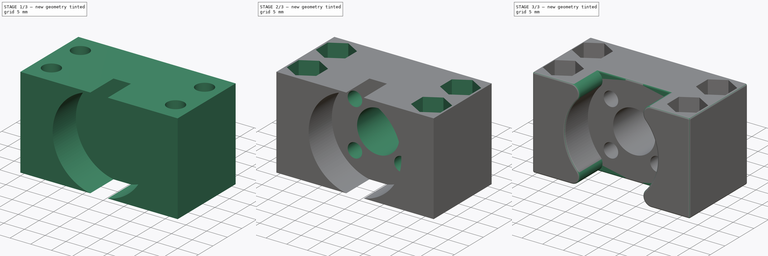
[diagram: build sequence overview — one tinted view per stage of 3, left to right]
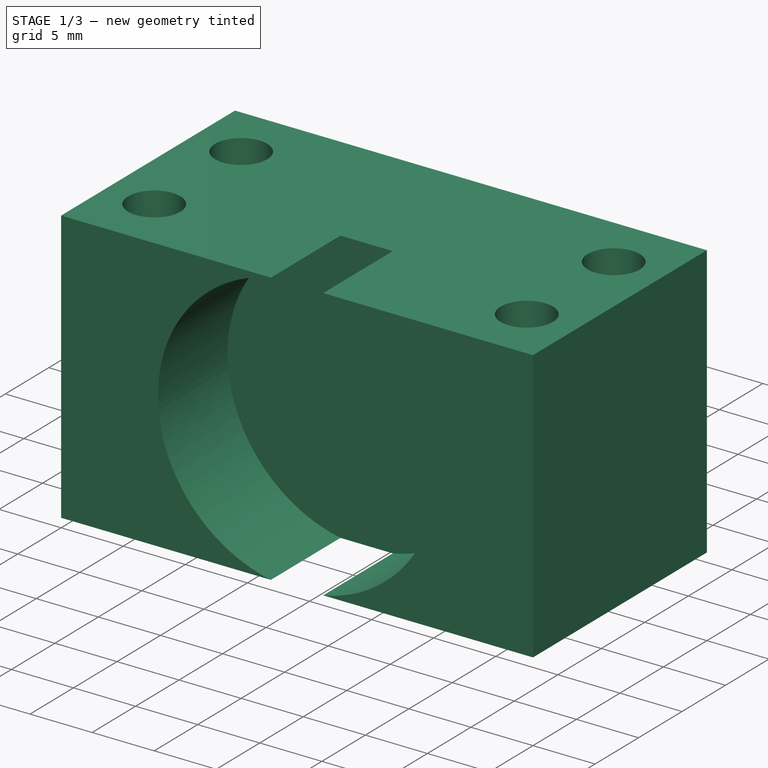
[diagram: stage 1 of 3 — iso view after this stage's code; geometry added in this stage tinted green]
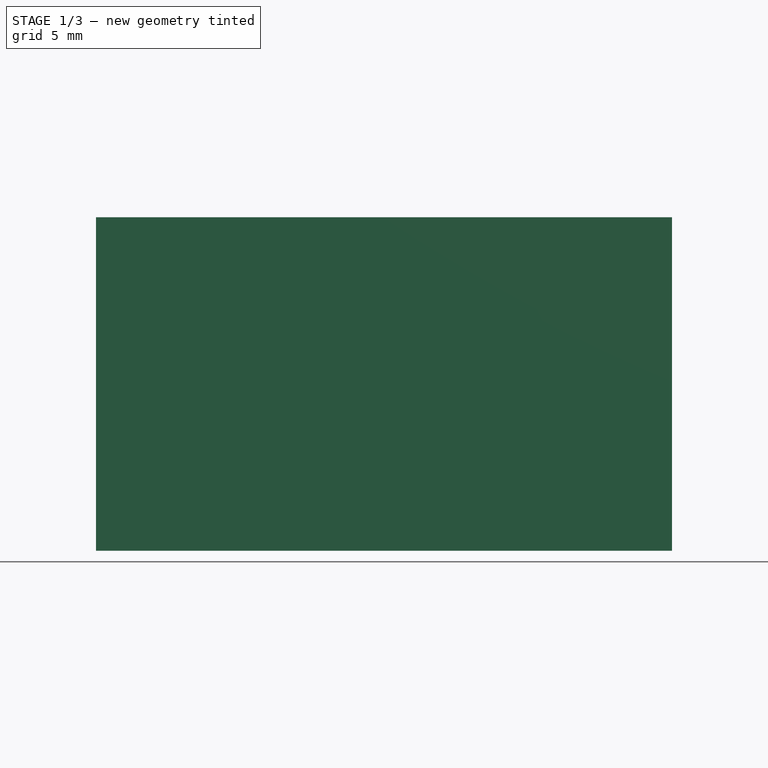
[diagram: stage 1 of 3 — front view after this stage's code; geometry added in this stage tinted green]
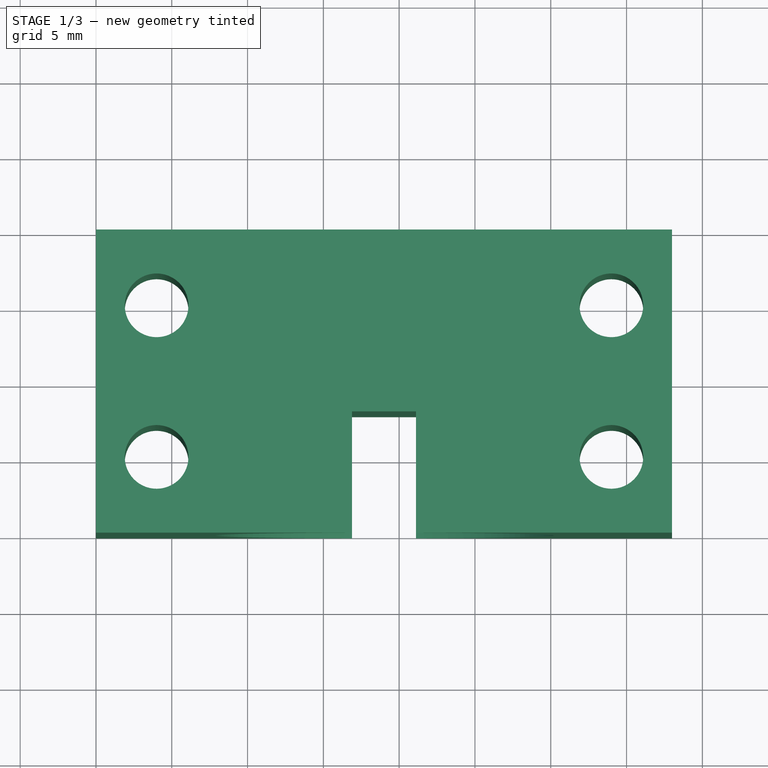
[diagram: stage 1 of 3 — top view after this stage's code; geometry added in this stage tinted green]
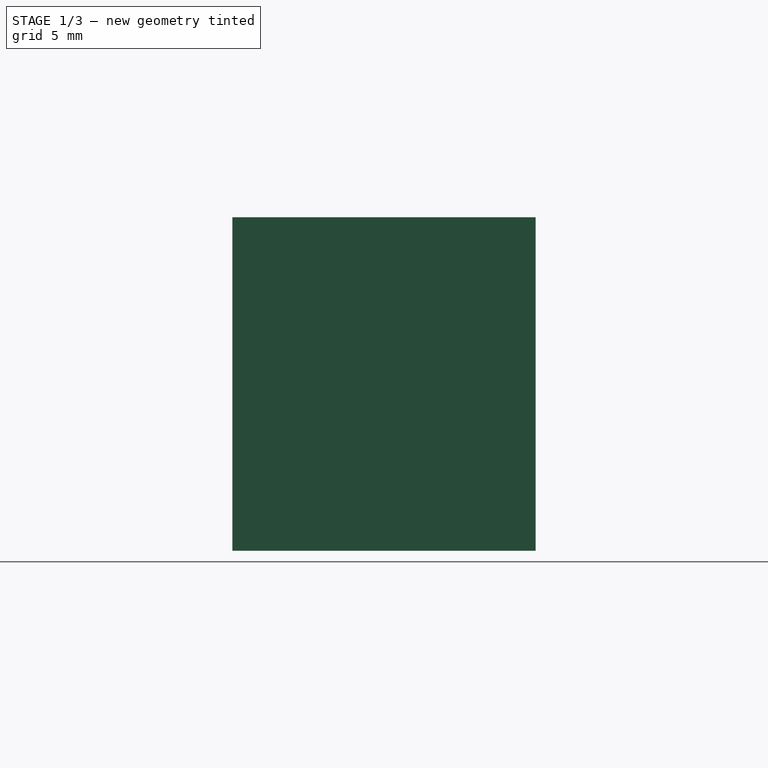
[diagram: stage 1 of 3 — right view after this stage's code; geometry added in this stage tinted green]
FCSTD DOCUMENT  (FreeCAD 0.19R24267 (Git))
Label: nutblock1b_cham
License: All rights reserved
LicenseURL: http://en.wikipedia.org/wiki/All_rights_reserved
objects: Sketcher::SketchObject×4, PartDesign::Pocket×3, PartDesign::Fillet×2, PartDesign::Pad×1, PartDesign::Body×1
note: 17 computed .brp shape members not serialized (recipe doc carries the construction recipe); baked Part::Feature solids carry a one-line shape summary decoded from their .brp

FEATURE [Sketcher::SketchObject] Sketch  label="Grundskizze"
  FullyConstrained = true
  MapMode = 5
  Support = -> [XY_Plane]
  sketch-geometry (12):
    g0: LineSegment StartX=0 StartY=20 StartZ=0 EndX=38 EndY=20 EndZ=0
    g1: LineSegment StartX=38 StartY=20 StartZ=0 EndX=38 EndY=0 EndZ=0
    g2: LineSegment StartX=38 StartY=0 StartZ=0 EndX=0 EndY=0 EndZ=0
    g3: LineSegment StartX=0 StartY=0 StartZ=0 EndX=0 EndY=20 EndZ=0
    g4: Circle CenterX=4 CenterY=15 CenterZ=0 NormalX=0 NormalY=0 NormalZ=1 AngleXU=0 Radius=2.1
    g5: Circle CenterX=4 CenterY=5 CenterZ=0 NormalX=0 NormalY=0 NormalZ=1 AngleXU=0 Radius=2.1
    g6: Circle CenterX=34 CenterY=15 CenterZ=0 NormalX=0 NormalY=0 NormalZ=1 AngleXU=0 Radius=2.1
    g7: Circle CenterX=34 CenterY=5 CenterZ=0 NormalX=0 NormalY=0 NormalZ=1 AngleXU=0 Radius=2.1
    g8: LineSegment StartX=4 StartY=15 StartZ=0 EndX=34 EndY=15 EndZ=0
    g9: LineSegment StartX=34 StartY=15 StartZ=0 EndX=34 EndY=5 EndZ=0
    g10: LineSegment StartX=34 StartY=5 StartZ=0 EndX=4 EndY=5 EndZ=0
    g11: LineSegment StartX=4 StartY=5 StartZ=0 EndX=4 EndY=15 EndZ=0
  constraints (31):
    c: Coincident(g0,g1)
    c: Coincident(g1,g2)
    c: Coincident(g2,g3)
    c: Coincident(g3,g0)
    c: Horizontal(g0)
    c: Horizontal(g2)
    c: Vertical(g1)
    c: Vertical(g3)
    c: DistanceX(g0,g0) = 38
    c: DistanceY(g3,g3) = 20
    c: Coincident(g2,g-1)
    c: DistanceX(g2,g5) = 4
    c: DistanceX(g4,g6) = 30
    c: DistanceY(g2,g5) = 5
    c: DistanceY(g5,g4) = 10
    c: Radius(g4) = 2.1  'durchgangsloch_m6'
    c: Equal(g4,g6)
    c: Equal(g4,g7)
    c: Equal(g4,g5)
    c: Coincident(g8,g9)
    c: Coincident(g9,g10)
    c: Coincident(g10,g11)
    c: Coincident(g11,g8)
    c: Horizontal(g8)
    c: Horizontal(g10)
    c: Vertical(g9)
    c: Vertical(g11)
    c: Coincident(g8,g4)
    c: Coincident(g5,g10)
    c: Coincident(g8,g6)
    c: Coincident(g7,g9)
FEATURE [PartDesign::Pad] Pad  label="Nutblock"
  AllowMultiFace = false
  Direction = (1,1,1)
  Length = 22
  Length2 = 100
  Profile = -> Sketch
  Type = 0
FEATURE [Sketcher::SketchObject] Sketch001  label="Trapezflansch"
  FullyConstrained = true
  MapMode = 5
  Placement = pos=(0,0,0) rot=(1,0,0;1.5708rad)
  Support = -> [Pad]
  sketch-geometry (1):
    g0: Circle CenterX=19 CenterY=11 CenterZ=0 NormalX=0 NormalY=0 NormalZ=1 AngleXU=0 Radius=11.2
  constraints (3):
    c: DistanceY(g-1,g0) = 11
    c: DistanceX(g-1,g0) = 19
    c: Radius(g0) = 11.2
FEATURE [PartDesign::Pocket] Pocket  label="Aussparung Trapezgwinde"
  AllowMultiFace = false
  BaseFeature = -> Pad
  Length = 8
  Length2 = 100
  Profile = -> Sketch001
  Type = 0
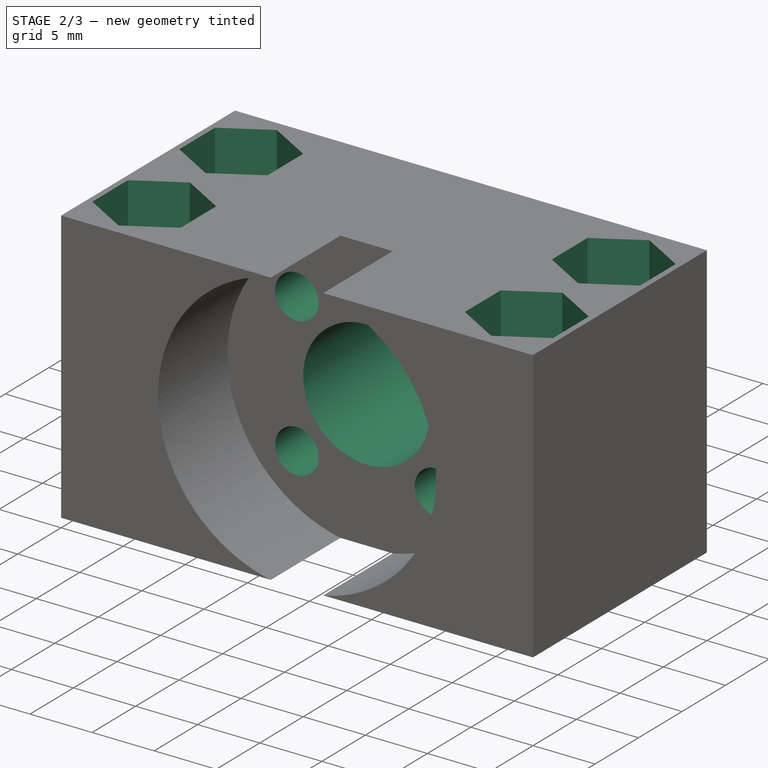
[diagram: stage 2 of 3 — iso view after this stage's code; geometry added in this stage tinted green]
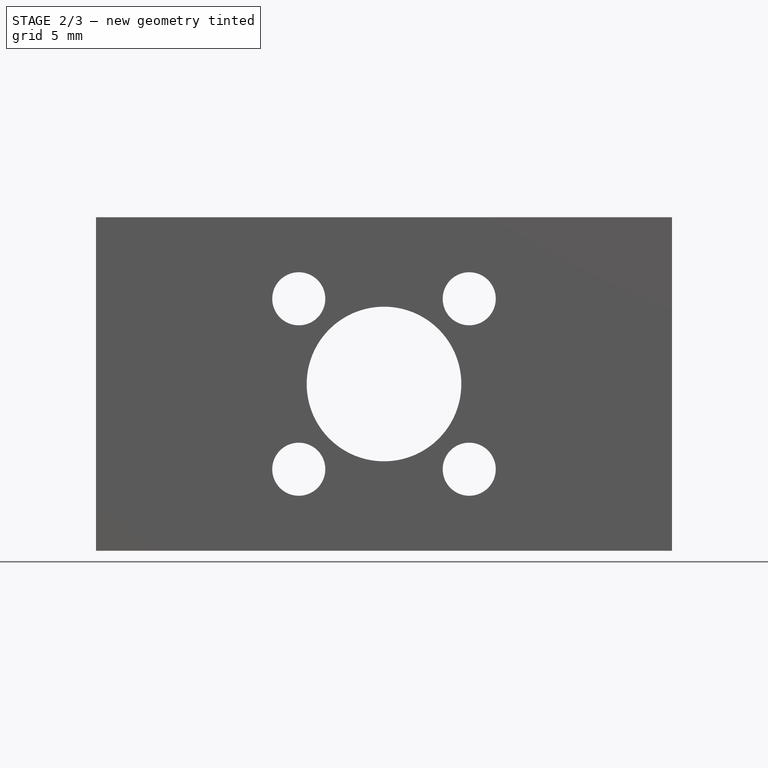
[diagram: stage 2 of 3 — front view after this stage's code; geometry added in this stage tinted green]
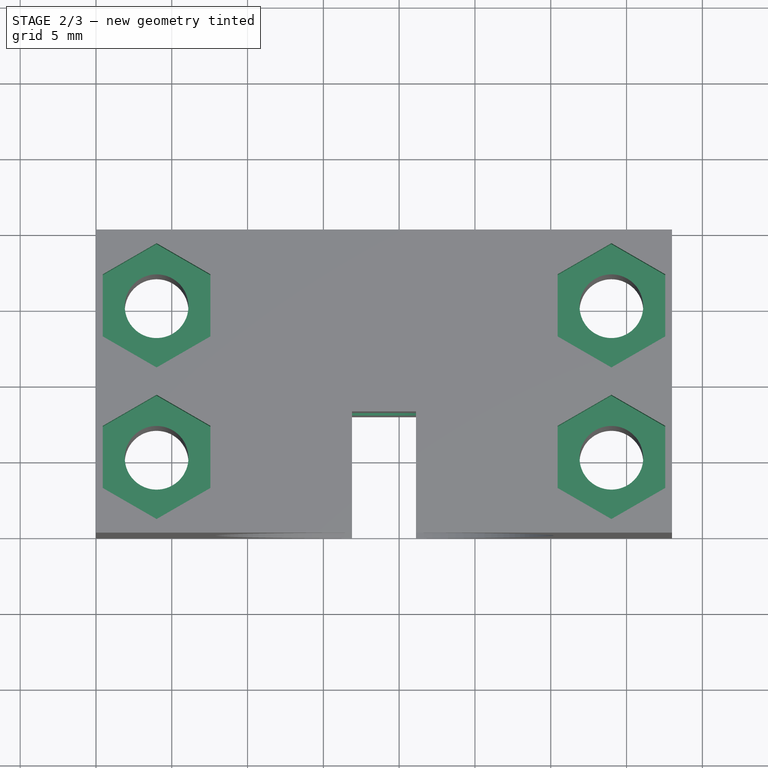
[diagram: stage 2 of 3 — top view after this stage's code; geometry added in this stage tinted green]
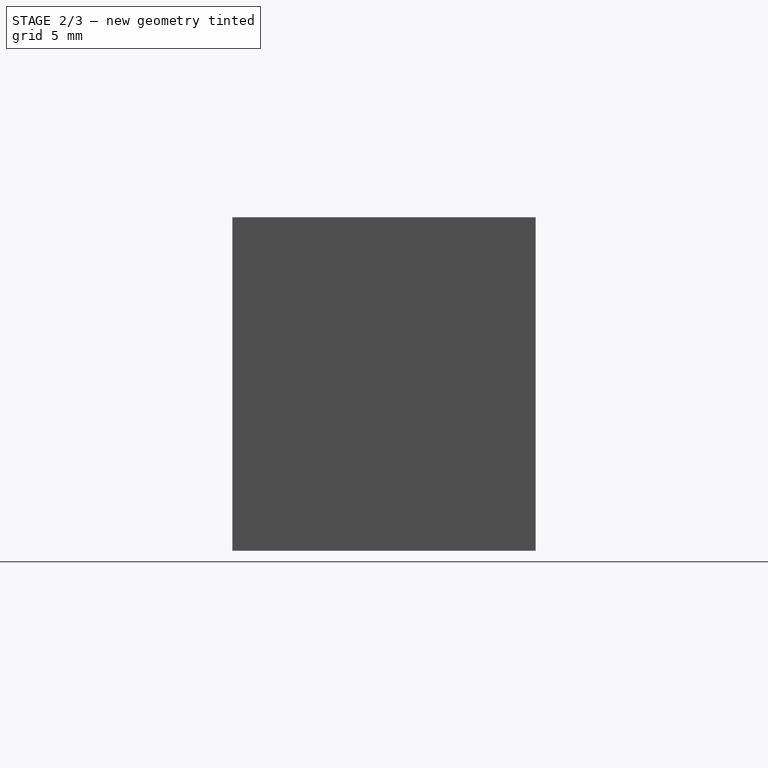
[diagram: stage 2 of 3 — right view after this stage's code; geometry added in this stage tinted green]
FEATURE [Sketcher::SketchObject] Sketch002  label="M3 Skizze"
  FullyConstrained = true
  MapMode = 5
  Placement = pos=(0,20,0) rot=(0,0.707107,0.707107;3.14159rad)
  Support = -> [Pocket]
  sketch-geometry (9):
    g0: Circle CenterX=-19 CenterY=11 CenterZ=0 NormalX=0 NormalY=0 NormalZ=1 AngleXU=0 Radius=5.1
    g1: Circle CenterX=-13.3785 CenterY=16.6215 CenterZ=0 NormalX=0 NormalY=0 NormalZ=1 AngleXU=0 Radius=1.75
    g2: Circle CenterX=-24.6215 CenterY=5.3785 CenterZ=0 NormalX=0 NormalY=0 NormalZ=1 AngleXU=0 Radius=1.75
    g3: Circle CenterX=-24.6215 CenterY=16.6215 CenterZ=0 NormalX=0 NormalY=0 NormalZ=1 AngleXU=0 Radius=1.75
    g4: Circle CenterX=-13.3785 CenterY=5.3785 CenterZ=0 NormalX=0 NormalY=0 NormalZ=1 AngleXU=0 Radius=1.75
    g5: LineSegment StartX=-24.6215 StartY=16.6215 StartZ=0 EndX=-13.3785 EndY=16.6215 EndZ=0
    g6: LineSegment StartX=-13.3785 StartY=16.6215 StartZ=0 EndX=-13.3785 EndY=5.3785 EndZ=0
    g7: LineSegment StartX=-13.3785 StartY=5.3785 StartZ=0 EndX=-24.6215 EndY=5.3785 EndZ=0
    g8: LineSegment StartX=-24.6215 StartY=5.3785 StartZ=0 EndX=-24.6215 EndY=16.6215 EndZ=0
  constraints (23):
    c: Radius(g0) = 5.1
    c: Radius(g1) = 1.75
    c: Coincident(g5,g6)
    c: Coincident(g6,g7)
    c: Coincident(g7,g8)
    c: Coincident(g8,g5)
    c: Horizontal(g5)
    c: Horizontal(g7)
    c: Vertical(g6)
    c: Vertical(g8)
    c: Coincident(g5,g3)
    c: Coincident(g1,g5)
    c: Coincident(g6,g4)
    c: Coincident(g7,g2)
    c: Equal(g1,g3)
    c: Equal(g3,g2)
    c: Equal(g2,g4)
    c: DistanceY(g-1,g0) = 11
    c: DistanceX(g0,g-1) = 19
    c: Distance(g2,g1) = 15.9
    c: Distance(g0,g4) = 7.95
    c: Equal(g5,g8)
    c: Distance(g0,g2) = 7.95
FEATURE [PartDesign::Pocket] Pocket001  label="M3 Bohrung"
  AllowMultiFace = false
  BaseFeature = -> Pocket
  Length = 20
  Length2 = 100
  Profile = -> Sketch002
  Type = 0
FEATURE [Sketcher::SketchObject] Sketch003  label="M4 Mutter Skizze"
  FullyConstrained = true
  MapMode = 5
  Placement = pos=(0,0,22) rot=(0,0,1;0rad)
  Support = -> [Pocket001]
  sketch-geometry (32):
    g0: LineSegment StartX=4 StartY=15 StartZ=0 EndX=34 EndY=15 EndZ=0
    g1: LineSegment StartX=34 StartY=15 StartZ=0 EndX=34 EndY=5 EndZ=0
    g2: LineSegment StartX=34 StartY=5 StartZ=0 EndX=4 EndY=5 EndZ=0
    g3: LineSegment StartX=4 StartY=5 StartZ=0 EndX=4 EndY=15 EndZ=0
    g4: LineSegment StartX=4 StartY=10.9008 StartZ=0 EndX=7.55 EndY=12.9504 EndZ=0
    g5: LineSegment StartX=7.55 StartY=12.9504 StartZ=0 EndX=7.55 EndY=17.0496 EndZ=0
    g6: LineSegment StartX=7.55 StartY=17.0496 StartZ=0 EndX=4 EndY=19.0992 EndZ=0
    g7: LineSegment StartX=4 StartY=19.0992 StartZ=0 EndX=0.45 EndY=17.0496 EndZ=0
    g8: LineSegment StartX=0.45 StartY=17.0496 StartZ=0 EndX=0.45 EndY=12.9504 EndZ=0
    g9: LineSegment StartX=0.45 StartY=12.9504 StartZ=0 EndX=4 EndY=10.9008 EndZ=0
    g10: Circle CenterX=4 CenterY=15 CenterZ=0 NormalX=0 NormalY=0 NormalZ=1 AngleXU=0 Radius=4.09919
    g11: LineSegment StartX=34 StartY=10.9008 StartZ=0 EndX=37.55 EndY=12.9504 EndZ=0
    g12: LineSegment StartX=37.55 StartY=12.9504 StartZ=0 EndX=37.55 EndY=17.0496 EndZ=0
    g13: LineSegment StartX=37.55 StartY=17.0496 StartZ=0 EndX=34 EndY=19.0992 EndZ=0
    g14: LineSegment StartX=34 StartY=19.0992 StartZ=0 EndX=30.45 EndY=17.0496 EndZ=0
    g15: LineSegment StartX=30.45 StartY=17.0496 StartZ=0 EndX=30.45 EndY=12.9504 EndZ=0
    g16: LineSegment StartX=30.45 StartY=12.9504 StartZ=0 EndX=34 EndY=10.9008 EndZ=0
    g17: Circle CenterX=34 CenterY=15 CenterZ=0 NormalX=0 NormalY=0 NormalZ=1 AngleXU=0 Radius=4.09919
    g18: LineSegment StartX=34 StartY=9.09919 StartZ=0 EndX=30.45 EndY=7.04959 EndZ=0
    g19: LineSegment StartX=30.45 StartY=7.04959 StartZ=0 EndX=30.45 EndY=2.95041 EndZ=0
    g20: LineSegment StartX=30.45 StartY=2.95041 StartZ=0 EndX=34 EndY=0.900813 EndZ=0
    g21: LineSegment StartX=34 StartY=0.900813 StartZ=0 EndX=37.55 EndY=2.95041 EndZ=0
    g22: LineSegment StartX=37.55 StartY=2.95041 StartZ=0 EndX=37.55 EndY=7.04959 EndZ=0
    g23: LineSegment StartX=37.55 StartY=7.04959 StartZ=0 EndX=34 EndY=9.09919 EndZ=0
    g24: Circle CenterX=34 CenterY=5 CenterZ=0 NormalX=0 NormalY=0 NormalZ=1 AngleXU=0 Radius=4.09919
    g25: LineSegment StartX=4 StartY=9.09919 StartZ=0 EndX=0.45 EndY=7.04959 EndZ=0
    g26: LineSegment StartX=0.45 StartY=7.04959 StartZ=0 EndX=0.45 EndY=2.95041 EndZ=0
    g27: LineSegment StartX=0.45 StartY=2.95041 StartZ=0 EndX=4 EndY=0.900813 EndZ=0
    g28: LineSegment StartX=4 StartY=0.900813 StartZ=0 EndX=7.55 EndY=2.95041 EndZ=0
    g29: LineSegment StartX=7.55 StartY=2.95041 StartZ=0 EndX=7.55 EndY=7.04959 EndZ=0
    g30: LineSegment StartX=7.55 StartY=7.04959 StartZ=0 EndX=4 EndY=9.09919 EndZ=0
    g31: Circle CenterX=4 CenterY=5 CenterZ=0 NormalX=0 NormalY=0 NormalZ=1 AngleXU=0 Radius=4.09919
  constraints (76):
    c: Coincident(g0,g1)
    c: Coincident(g1,g2)
    c: Coincident(g2,g3)
    c: Coincident(g3,g0)
    c: Horizontal(g0)
    c: Horizontal(g2)
    c: Vertical(g1)
    c: Vertical(g3)
    c: DistanceX(g0,g0) = 30
    c: DistanceY(g1,g1) = 10
    c: DistanceY(g-1,g2) = 5
    c: DistanceX(g-1,g2) = 4
    c: Coincident(g4,g5)
    c: Coincident(g5,g6)
    c: Coincident(g6,g7)
    c: Coincident(g7,g8)
    c: Coincident(g8,g9)
    c: Coincident(g9,g4)
    c: Equal(g4, g5-g9) x5
    c: PointOnObject(g4,g10)
    c: PointOnObject(g5,g10)
    c: PointOnObject(g6,g10)
    c: PointOnObject(g7,g10)
    c: PointOnObject(g8,g10)
    c: PointOnObject(g9,g10)
    c: Coincident(g10,g0)
    c: PointOnObject(g9,g3)
    c: Coincident(g11,g12)
    c: Coincident(g12,g13)
    c: Coincident(g13,g14)
    c: Coincident(g14,g15)
    c: Coincident(g15,g16)
    c: Coincident(g16,g11)
    c: Equal(g11, g12-g16) x5
    c: PointOnObject(g11,g17)
    c: PointOnObject(g12,g17)
    c: PointOnObject(g13,g17)
    c: PointOnObject(g14,g17)
    c: PointOnObject(g15,g17)
    c: PointOnObject(g16,g17)
    c: Coincident(g17,g0)
    c: PointOnObject(g16,g1)
    c: Coincident(g18,g19)
    c: Coincident(g19,g20)
    c: Coincident(g20,g21)
    c: Coincident(g21,g22)
    c: Coincident(g22,g23)
    c: Coincident(g23,g18)
    c: Equal(g18, g19-g23) x5
    c: PointOnObject(g18,g24)
    c: PointOnObject(g19,g24)
    c: PointOnObject(g20,g24)
    c: PointOnObject(g21,g24)
    c: PointOnObject(g22,g24)
    c: PointOnObject(g23,g24)
    c: Coincident(g24,g1)
    c: PointOnObject(g23,g1)
    c: Coincident(g25,g26)
    c: Coincident(g26,g27)
    c: Coincident(g27,g28)
    c: Coincident(g28,g29)
    c: Coincident(g29,g30)
    c: Coincident(g30,g25)
    c: Equal(g25, g26-g30) x5
    c: PointOnObject(g25,g31)
    c: PointOnObject(g26,g31)
    c: PointOnObject(g27,g31)
    c: PointOnObject(g28,g31)
    c: PointOnObject(g29,g31)
    c: PointOnObject(g30,g31)
    c: Coincident(g31,g2)
    c: PointOnObject(g30,g3)
    c: DistanceX(g7,g5) = 7.1
    c: Equal(g6,g30)
    c: Equal(g30,g18)
    c: Equal(g18,g14)
FEATURE [PartDesign::Pocket] Pocket002  label="M4 Mutter Senkung"
  BaseFeature = -> Pocket001
  Length = 3.4
  Length2 = 100
  Profile = -> Sketch003
  Type = 0
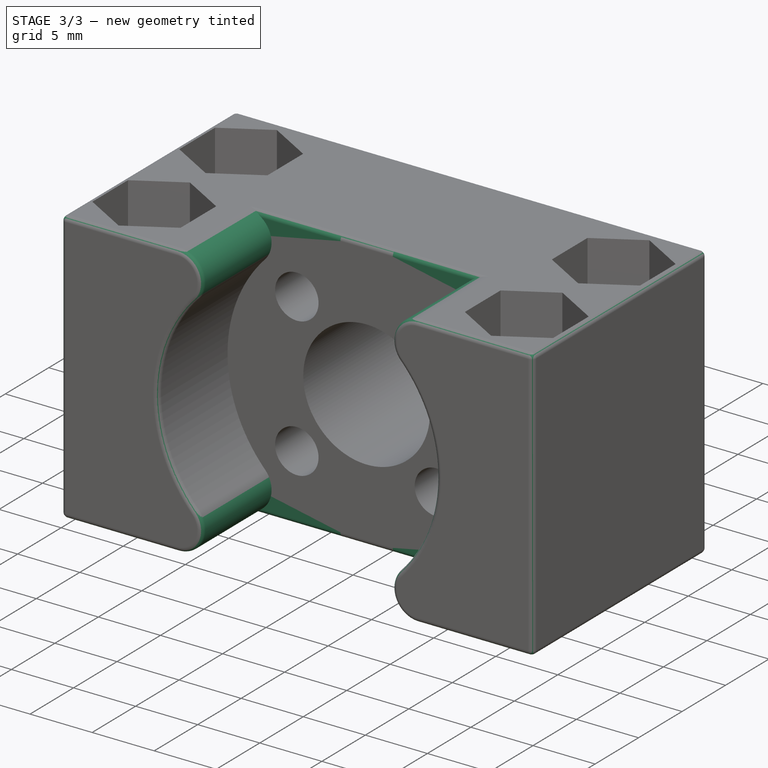
[diagram: stage 3 of 3 — iso view after this stage's code; geometry added in this stage tinted green]
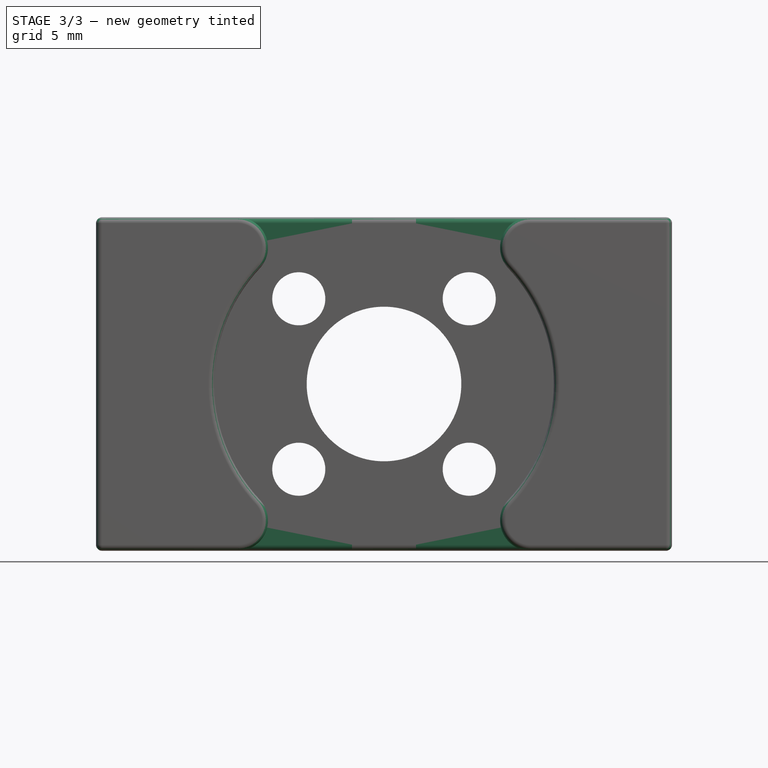
[diagram: stage 3 of 3 — front view after this stage's code; geometry added in this stage tinted green]
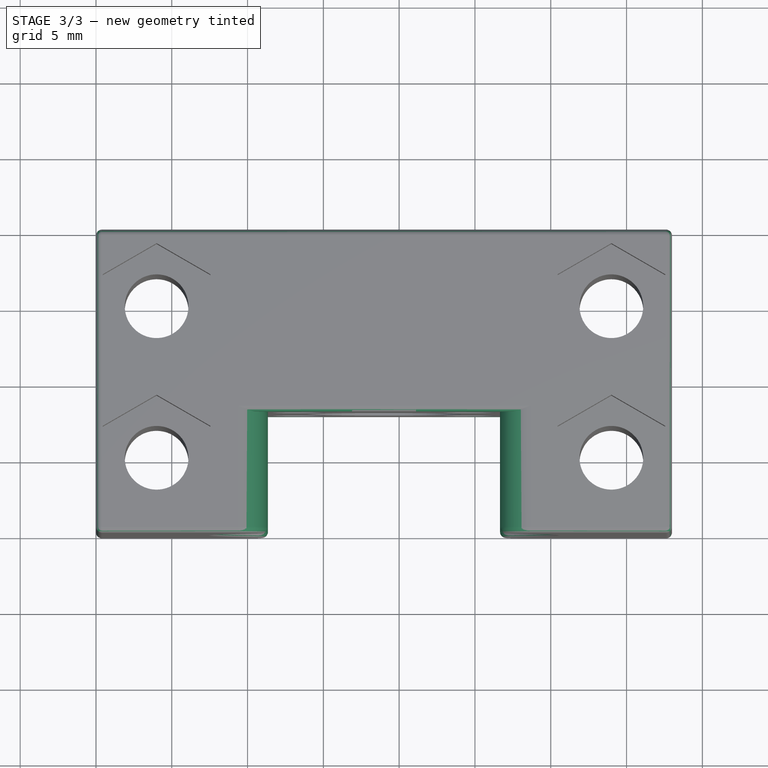
[diagram: stage 3 of 3 — top view after this stage's code; geometry added in this stage tinted green]
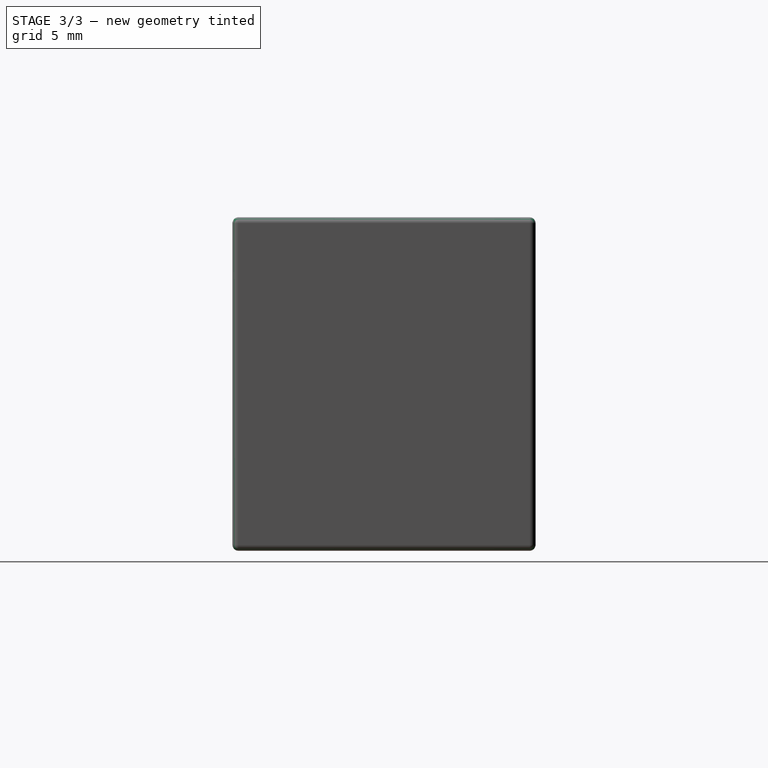
[diagram: stage 3 of 3 — right view after this stage's code; geometry added in this stage tinted green]
FEATURE [PartDesign::Fillet] Fillet
  Base = -> Pocket002 [Edge24,Edge28,Edge16,Edge14]
  BaseFeature = -> Pocket002
  Radius = 2
  SupportTransform = false
FEATURE [PartDesign::Fillet] Fillet001
  Base = -> Fillet [Edge29,Edge30,Edge28,Edge16,Edge9,Edge1,Edge18,Edge49,Edge51,Edge50,Edge48,Edge47,Edge15,Edge17,Edge19,Edge45,Edge46,Edge39,Edge7,Edge23,Edge38,Edge22,Edge5,Edge3,Edge4,Edge6,Edge8]
  BaseFeature = -> Fillet
  Radius = 0.4
  SupportTransform = false
FEATURE [PartDesign::Body] Body  label="nutblock1ib_cham"
  Group = -> [Sketch,Pad,Sketch001,Pocket,Sketch002,Pocket001,Sketch003,Pocket002,Fillet,Fillet001]
  Origin = -> Origin
  Tip = -> Fillet001
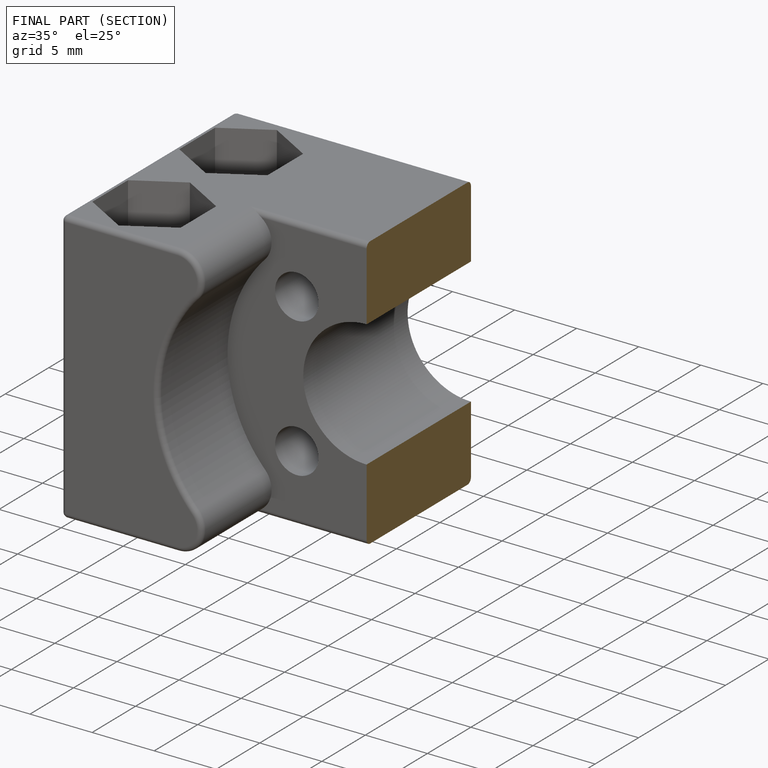
[diagram: finished part — half-section view (interior)]
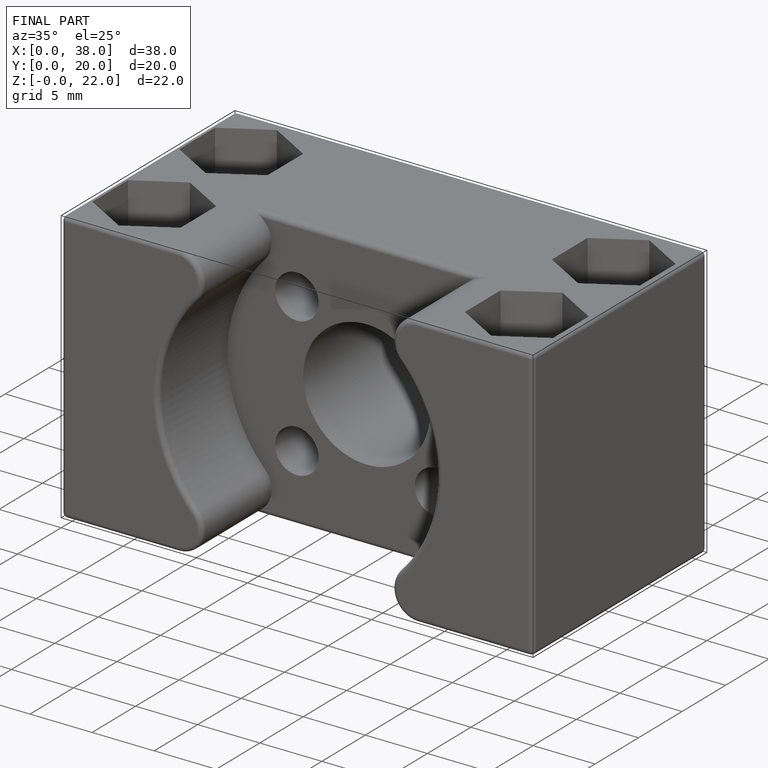
[diagram: finished part — iso view with bounding-box wireframe]
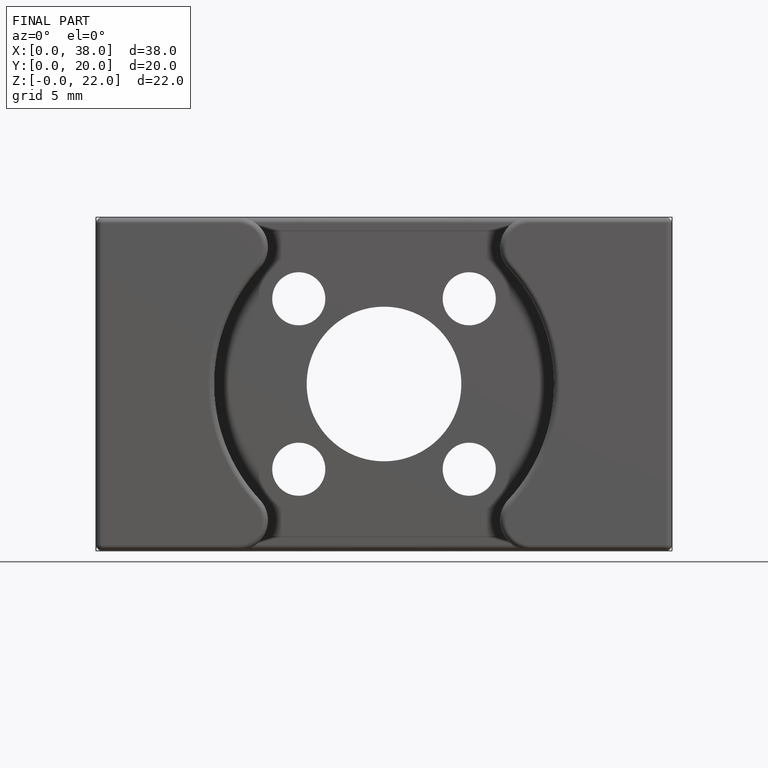
[diagram: finished part — front view with bounding-box wireframe]
